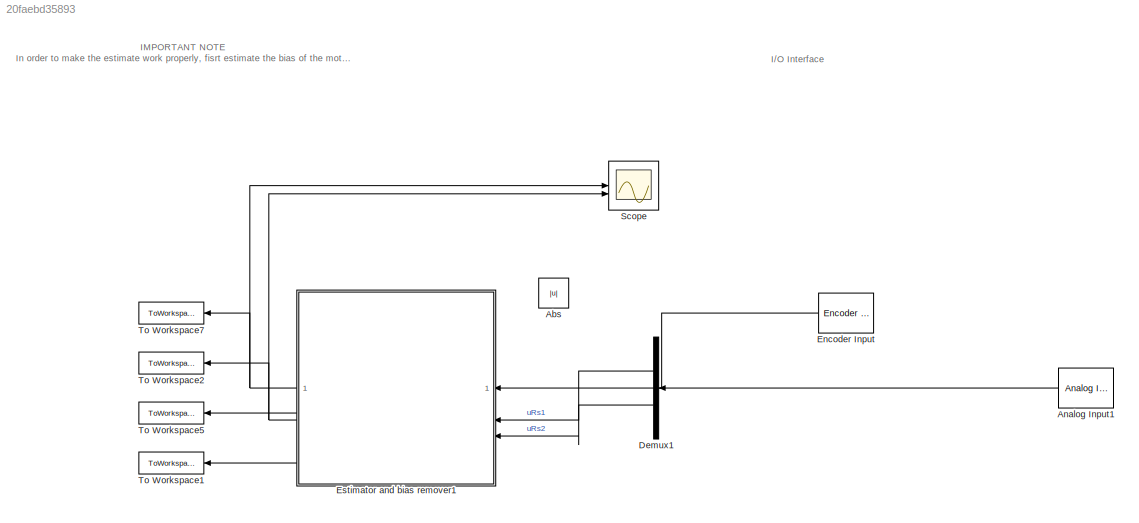
MODEL slx_20faebd35893
KIND model
CONFIG AbsTol = auto
CONFIG EnableMultiTasking = off
CONFIG FixedStep = 0.001
CONFIG MaxStep = auto
CONFIG MinStep = auto
CONFIG RelTol = 1e-3
CONFIG SampleTimeConstraint = Unconstrained
CONFIG SolverName = FixedStepAuto
CONFIG StartTime = 0.0
CONFIG StopTime = 30
BLOCK [Abs] Abs
  SaturateOnIntegerOverflow = off
BLOCK [Reference] Analog Input1  REF=sldrtlib/Analog Input
  AttributesFormatString = National Instruments\nPCI-6221 [auto]
  NameLocation = top
  SourceBlock = sldrtlib/Analog Input
  SourceType = Simulink Desktop Real-Time Analog Input
BLOCK [Demux] Demux1
  NameLocation = top
  Outputs = 2
BLOCK [Reference] Encoder Input  REF=sldrtlib/Encoder Input
  AttributesFormatString = National Instruments\nPCI-6221 [auto]
  NameLocation = top
  SourceBlock = sldrtlib/Encoder Input
  SourceType = Simulink Desktop Real-Time Encoder Input
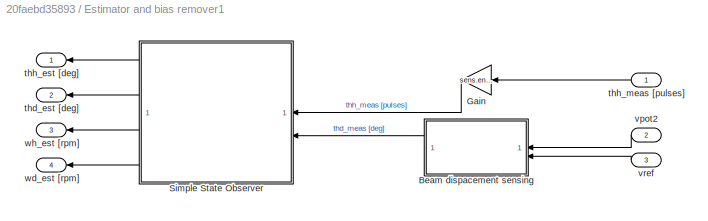
BLOCK [SubSystem] Estimator and bias remover1
  NameLocation = top
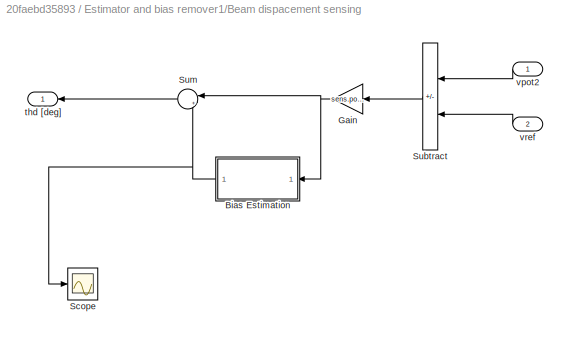
BLOCK [SubSystem] Estimator and bias remover1/Beam dispacement sensing
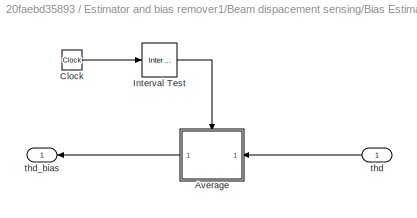
BLOCK [SubSystem] Estimator and bias remover1/Beam dispacement sensing/Bias Estimation
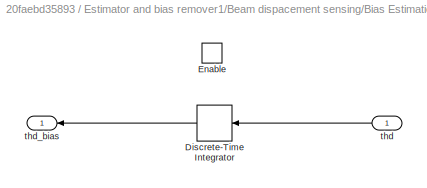
BLOCK [SubSystem] Estimator and bias remover1/Beam dispacement sensing/Bias Estimation/Average
BLOCK [DiscreteIntegrator] Estimator and bias remover1/Beam dispacement sensing/Bias Estimation/Average/Discrete-Time Integrator
  ICPrevOutput = DiscIntNeverNeededParam
  ICPrevScaledInput = DiscIntNeverNeededParam
  InitialConditionSetting = Auto
  NameLocation = top
  SampleTime = Ts
  gainval = 1/(0.7-0.2)
BLOCK [EnablePort] Estimator and bias remover1/Beam dispacement sensing/Bias Estimation/Average/Enable
BLOCK [Inport] Estimator and bias remover1/Beam dispacement sensing/Bias Estimation/Average/thd
  NameLocation = top
BLOCK [Outport] Estimator and bias remover1/Beam dispacement sensing/Bias Estimation/Average/thd_bias
  NameLocation = top
BLOCK [Clock] Estimator and bias remover1/Beam dispacement sensing/Bias Estimation/Clock
BLOCK [Reference] Estimator and bias remover1/Beam dispacement sensing/Bias Estimation/Interval Test  REF=simulink/Logic and Bit
Operations/Interval Test
  SourceBlock = simulink/Logic and Bit\nOperations/Interval Test
  SourceType = Interval Test
BLOCK [Inport] Estimator and bias remover1/Beam dispacement sensing/Bias Estimation/thd
  NameLocation = top
BLOCK [Outport] Estimator and bias remover1/Beam dispacement sensing/Bias Estimation/thd_bias
  NameLocation = top
BLOCK [Gain] Estimator and bias remover1/Beam dispacement sensing/Gain
  Gain = sens.pot2.V2deg
  NameLocation = top
BLOCK [Scope] Estimator and bias remover1/Beam dispacement sensing/Scope
  Floating = off
  NumInputPorts = 1
  ScopeSpecificationString = Simulink.scopes.TimeScopeBlockCfg('CurrentConfiguration', extmgr.ConfigurationSet(extmgr.Configuration('Core','General UI',true),extmgr.Configuration('Core','Source UI',true),extmgr.Configuration('Sources','WiredSimulink',true,'DataLoggingVariableName','ScopeData1'),extmgr.Configuration('Visuals','Time Domain',true,'SerializedDisplays',{struct('MinYLimReal','-14.51999','MaxYLimReal','-13.39555','Y...<+1455ch>
BLOCK [Sum] Estimator and bias remover1/Beam dispacement sensing/Subtract
  IconShape = rectangular
  Inputs = +-
  NameLocation = top
BLOCK [Sum] Estimator and bias remover1/Beam dispacement sensing/Sum
  Inputs = |+-
  NameLocation = top
BLOCK [Outport] Estimator and bias remover1/Beam dispacement sensing/thd [deg]
  NameLocation = top
BLOCK [Inport] Estimator and bias remover1/Beam dispacement sensing/vpot2
  NameLocation = top
BLOCK [Inport] Estimator and bias remover1/Beam dispacement sensing/vref
  NameLocation = top
  Port = 2
BLOCK [Gain] Estimator and bias remover1/Gain
  Gain = sens.enc.pulse2deg
  NameLocation = top
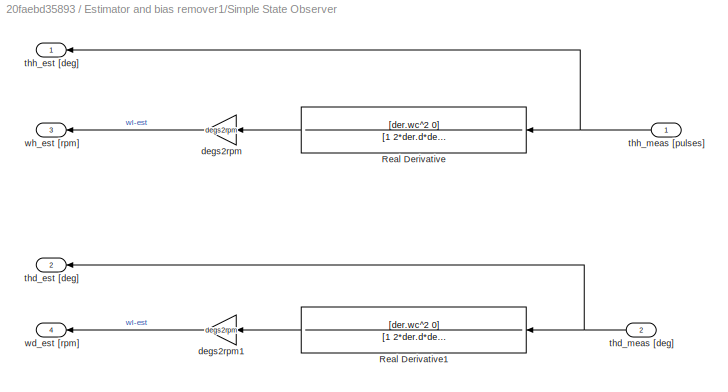
BLOCK [SubSystem] Estimator and bias remover1/Simple State Observer
  NameLocation = top
BLOCK [TransferFcn] Estimator and bias remover1/Simple State Observer/Real Derivative
  Denominator = [1 2*der.d*der.wc der.wc^2]
  NameLocation = top
  Numerator = [der.wc^2 0]
BLOCK [TransferFcn] Estimator and bias remover1/Simple State Observer/Real Derivative1
  Denominator = [1 2*der.d*der.wc der.wc^2]
  NameLocation = top
  Numerator = [der.wc^2 0]
BLOCK [Gain] Estimator and bias remover1/Simple State Observer/degs2rpm
  Gain = degs2rpm
BLOCK [Gain] Estimator and bias remover1/Simple State Observer/degs2rpm1
  Gain = degs2rpm
BLOCK [Outport] Estimator and bias remover1/Simple State Observer/thd_est [deg]
  NameLocation = top
  Port = 2
BLOCK [Inport] Estimator and bias remover1/Simple State Observer/thd_meas [deg]
  NameLocation = top
  Port = 2
BLOCK [Outport] Estimator and bias remover1/Simple State Observer/thh_est [deg]
  NameLocation = top
BLOCK [Inport] Estimator and bias remover1/Simple State Observer/thh_meas [pulses]
  NameLocation = top
BLOCK [Outport] Estimator and bias remover1/Simple State Observer/wd_est [rpm]
  NameLocation = top
  Port = 4
BLOCK [Outport] Estimator and bias remover1/Simple State Observer/wh_est [rpm]
  NameLocation = top
  Port = 3
BLOCK [Outport] Estimator and bias remover1/thd_est [deg]
  NameLocation = top
  Port = 2
BLOCK [Outport] Estimator and bias remover1/thh_est [deg]
  NameLocation = top
BLOCK [Inport] Estimator and bias remover1/thh_meas [pulses]
  NameLocation = top
BLOCK [Inport] Estimator and bias remover1/vpot2
  NameLocation = top
  Port = 2
BLOCK [Inport] Estimator and bias remover1/vref
  Port = 3
BLOCK [Outport] Estimator and bias remover1/wd_est [rpm]
  NameLocation = top
  Port = 4
BLOCK [Outport] Estimator and bias remover1/wh_est [rpm]
  NameLocation = top
  Port = 3
BLOCK [Scope] Scope
  Floating = off
  NumInputPorts = 2
  ScopeSpecificationString = Simulink.scopes.TimeScopeBlockCfg('CurrentConfiguration', extmgr.ConfigurationSet(extmgr.Configuration('Core','General UI',true),extmgr.Configuration('Core','Source UI',true),extmgr.Configuration('Sources','WiredSimulink',true),extmgr.Configuration('Visuals','Time Domain',true,'SerializedDisplays',{struct('MinYLimReal','-18.15021','MaxYLimReal','15.92268','YLabelReal','','MinYLimMag','0.00000','Ma...<+1460ch>
BLOCK [ToWorkspace] To Workspace1
  FixptAsFi = on
  MaxDataPoints = inf
  SampleTime = Ts
  SaveFormat = Structure With Time
  VariableName = wd_est
BLOCK [ToWorkspace] To Workspace2
  FixptAsFi = on
  MaxDataPoints = inf
  SampleTime = Ts
  SaveFormat = Structure With Time
  VariableName = thd_est
BLOCK [ToWorkspace] To Workspace5
  FixptAsFi = on
  MaxDataPoints = inf
  SampleTime = Ts
  SaveFormat = Structure With Time
  VariableName = wh_est
BLOCK [ToWorkspace] To Workspace7
  FixptAsFi = on
  MaxDataPoints = inf
  SampleTime = Ts
  SaveFormat = Structure With Time
  VariableName = thh_est
ANNOTATION (root): IMPORTANT NOTE In order to make the estimate work properly, fisrt estimate the bias of the motor we are using (Real, BB, Lab) and update the value inside the correspondant block in the estimator. Then run the simulation to estimate the desired parameters.
ANNOTATION (root): I/O Interface
LINE Analog Input1:1 -> Demux1:1
LINE Demux1:1 -> Estimator and bias remover1:2
LINE Demux1:2 -> Estimator and bias remover1:3
LINE Encoder Input:1 -> Estimator and bias remover1:1
LINE Estimator and bias remover1/Beam dispacement sensing/Bias Estimation/Average/Discrete-Time Integrator:1 -> Estimator and bias remover1/Beam dispacement sensing/Bias Estimation/Average/thd_bias:1
LINE Estimator and bias remover1/Beam dispacement sensing/Bias Estimation/Average/thd:1 -> Estimator and bias remover1/Beam dispacement sensing/Bias Estimation/Average/Discrete-Time Integrator:1
LINE Estimator and bias remover1/Beam dispacement sensing/Bias Estimation/Average:1 -> Estimator and bias remover1/Beam dispacement sensing/Bias Estimation/thd_bias:1
LINE Estimator and bias remover1/Beam dispacement sensing/Bias Estimation/Clock:1 -> Estimator and bias remover1/Beam dispacement sensing/Bias Estimation/Interval Test:1
LINE Estimator and bias remover1/Beam dispacement sensing/Bias Estimation/Interval Test:1 -> Estimator and bias remover1/Beam dispacement sensing/Bias Estimation/Average:enable
LINE Estimator and bias remover1/Beam dispacement sensing/Bias Estimation/thd:1 -> Estimator and bias remover1/Beam dispacement sensing/Bias Estimation/Average:1
NET Estimator and bias remover1/Beam dispacement sensing/Bias Estimation:1 -> Estimator and bias remover1/Beam dispacement sensing/Scope:1, Estimator and bias remover1/Beam dispacement sensing/Sum:2
NET Estimator and bias remover1/Beam dispacement sensing/Gain:1 -> Estimator and bias remover1/Beam dispacement sensing/Bias Estimation:1, Estimator and bias remover1/Beam dispacement sensing/Sum:1
LINE Estimator and bias remover1/Beam dispacement sensing/Subtract:1 -> Estimator and bias remover1/Beam dispacement sensing/Gain:1
LINE Estimator and bias remover1/Beam dispacement sensing/Sum:1 -> Estimator and bias remover1/Beam dispacement sensing/thd [deg]:1
LINE Estimator and bias remover1/Beam dispacement sensing/vpot2:1 -> Estimator and bias remover1/Beam dispacement sensing/Subtract:1
LINE Estimator and bias remover1/Beam dispacement sensing/vref:1 -> Estimator and bias remover1/Beam dispacement sensing/Subtract:2
LINE Estimator and bias remover1/Beam dispacement sensing:1 -> Estimator and bias remover1/Simple State Observer:2
LINE Estimator and bias remover1/Gain:1 -> Estimator and bias remover1/Simple State Observer:1
LINE Estimator and bias remover1/Simple State Observer/Real Derivative1:1 -> Estimator and bias remover1/Simple State Observer/degs2rpm1:1
LINE Estimator and bias remover1/Simple State Observer/Real Derivative:1 -> Estimator and bias remover1/Simple State Observer/degs2rpm:1
LINE Estimator and bias remover1/Simple State Observer/degs2rpm1:1 -> Estimator and bias remover1/Simple State Observer/wd_est [rpm]:1
LINE Estimator and bias remover1/Simple State Observer/degs2rpm:1 -> Estimator and bias remover1/Simple State Observer/wh_est [rpm]:1
NET Estimator and bias remover1/Simple State Observer/thd_meas [deg]:1 -> Estimator and bias remover1/Simple State Observer/Real Derivative1:1, Estimator and bias remover1/Simple State Observer/thd_est [deg]:1
NET Estimator and bias remover1/Simple State Observer/thh_meas [pulses]:1 -> Estimator and bias remover1/Simple State Observer/Real Derivative:1, Estimator and bias remover1/Simple State Observer/thh_est [deg]:1
LINE Estimator and bias remover1/Simple State Observer:1 -> Estimator and bias remover1/thh_est [deg]:1
LINE Estimator and bias remover1/Simple State Observer:2 -> Estimator and bias remover1/thd_est [deg]:1
LINE Estimator and bias remover1/Simple State Observer:3 -> Estimator and bias remover1/wh_est [rpm]:1
LINE Estimator and bias remover1/Simple State Observer:4 -> Estimator and bias remover1/wd_est [rpm]:1
LINE Estimator and bias remover1/thh_meas [pulses]:1 -> Estimator and bias remover1/Gain:1
LINE Estimator and bias remover1/vpot2:1 -> Estimator and bias remover1/Beam dispacement sensing:1
LINE Estimator and bias remover1/vref:1 -> Estimator and bias remover1/Beam dispacement sensing:2
NET Estimator and bias remover1:1 -> Scope:1, To Workspace7:1
NET Estimator and bias remover1:2 -> Scope:2, To Workspace2:1
LINE Estimator and bias remover1:3 -> To Workspace5:1
LINE Estimator and bias remover1:4 -> To Workspace1:1
note: NET lines group one-source signal fan-out (src -> all destinations, sorted); 1:1 wires keep LINE
